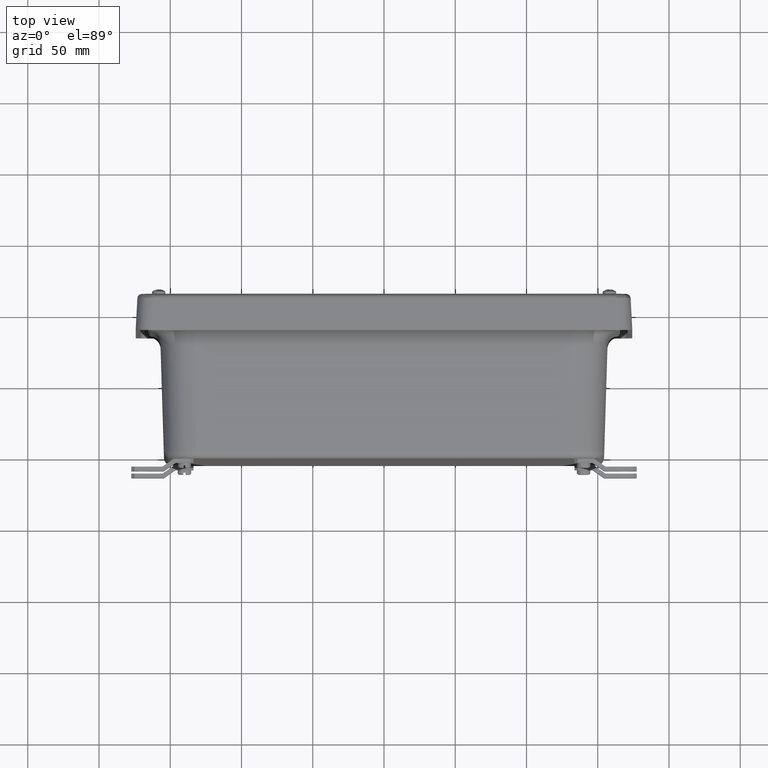
[diagram: clean part render]
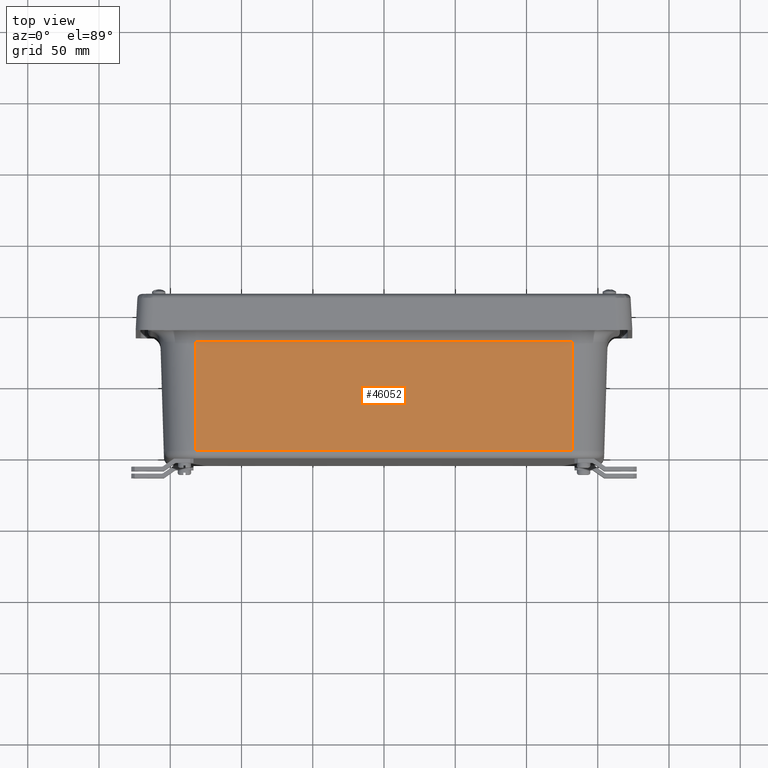
[diagram: same view with one face highlighted and labeled with its STEP entity id]
A machine part, top view. The second image highlights one B-rep face of the part: STEP entity #46052.
In plain terms, the highlighted planar face has unit normal (0, -0.0305, 0.9995).
Its self-contained STEP definition (entity closure, byte-faithful):
#363 = DIRECTION ( 'NONE',  ( 2.100845420063328200E-016, -0.03053851320982272500, 0.9995335908367130000 ) ) ;
#2619 = CARTESIAN_POINT ( 'NONE',  ( -5.198999999999999800, -0.8964719838785354400, 6.171610303672742300 ) ) ;
#4675 = VERTEX_POINT ( 'NONE', #67538 ) ;
#5503 = LINE ( 'NONE', #81938, #20477 ) ;
#6282 = CARTESIAN_POINT ( 'NONE',  ( -5.198999999999999800, 0.0000000000000000000, 6.198999999999999800 ) ) ;
#11029 = VERTEX_POINT ( 'NONE', #76137 ) ;
#11096 = ORIENTED_EDGE ( 'NONE', *, *, #52428, .T. ) ;
#12329 = DIRECTION ( 'NONE',  ( -1.000000000000000000, 3.593085495644085600E-037, 2.101825730843826400E-016 ) ) ;
#18516 = ORIENTED_EDGE ( 'NONE', *, *, #33077, .F. ) ;
#19786 = AXIS2_PLACEMENT_3D ( 'NONE', #6282, #363, #31938 ) ;
#20477 = VECTOR ( 'NONE', #24950, 39.37007874015748100 ) ;
#21417 = CARTESIAN_POINT ( 'NONE',  ( 5.198999999999999800, -3.912687934392951500, 6.079456571679245700 ) ) ;
#24950 = DIRECTION ( 'NONE',  ( 6.418663284611948800E-018, 0.9995335908367130000, 0.03053851320982272500 ) ) ;
#28395 = LINE ( 'NONE', #55631, #57345 ) ;
#28562 = VECTOR ( 'NONE', #12329, 39.37007874015748100 ) ;
#30771 = CARTESIAN_POINT ( 'NONE',  ( -5.198999999999999800, -0.8964719838785353300, 6.171610303672742300 ) ) ;
#31938 = DIRECTION ( 'NONE',  ( 0.0000000000000000000, -0.9995335908367130000, -0.03053851320982272500 ) ) ;
#32340 = DIRECTION ( 'NONE',  ( 1.000000000000000000, -3.593085495644085600E-037, -2.101825730843826400E-016 ) ) ;
#33077 = EDGE_CURVE ( 'NONE', #11029, #74691, #28395, .T. ) ;
#33598 = ORIENTED_EDGE ( 'NONE', *, *, #44725, .T. ) ;
#34718 = VECTOR ( 'NONE', #32340, 39.37007874015748100 ) ;
#42450 = DIRECTION ( 'NONE',  ( 0.0000000000000000000, 0.9995335908367130000, 0.03053851320982272500 ) ) ;
#44485 = PLANE ( 'NONE',  #19786 ) ;
#44725 = EDGE_CURVE ( 'NONE', #4675, #74691, #76592, .T. ) ;
#46052 = ADVANCED_FACE ( 'NONE', ( #66588 ), #44485, .T. ) ;
#47662 = ORIENTED_EDGE ( 'NONE', *, *, #76772, .T. ) ;
#51048 = CARTESIAN_POINT ( 'NONE',  ( -5.198999999999999800, -3.912687934392951000, 6.079456571679248400 ) ) ;
#52428 = EDGE_CURVE ( 'NONE', #62419, #4675, #5503, .T. ) ;
#55631 = CARTESIAN_POINT ( 'NONE',  ( -5.198999999999999800, 0.0000000000000000000, 6.198999999999999800 ) ) ;
#57345 = VECTOR ( 'NONE', #42450, 39.37007874015748100 ) ;
#62419 = VERTEX_POINT ( 'NONE', #21417 ) ;
#66588 = FACE_OUTER_BOUND ( 'NONE', #72388, .T. ) ;
#67538 = CARTESIAN_POINT ( 'NONE',  ( 5.198999999999999800, -0.8964719838785354400, 6.171610303672740500 ) ) ;
#72388 = EDGE_LOOP ( 'NONE', ( #18516, #47662, #11096, #33598 ) ) ;
#74691 = VERTEX_POINT ( 'NONE', #2619 ) ;
#76137 = CARTESIAN_POINT ( 'NONE',  ( -5.198999999999999800, -3.912687934392951500, 6.079456571679248400 ) ) ;
#76592 = LINE ( 'NONE', #30771, #28562 ) ;
#76772 = EDGE_CURVE ( 'NONE', #11029, #62419, #81706, .T. ) ;
#81706 = LINE ( 'NONE', #51048, #34718 ) ;
#81938 = CARTESIAN_POINT ( 'NONE',  ( 5.198999999999999800, -1.516480271171051900E-032, 6.198999999999998100 ) ) ;